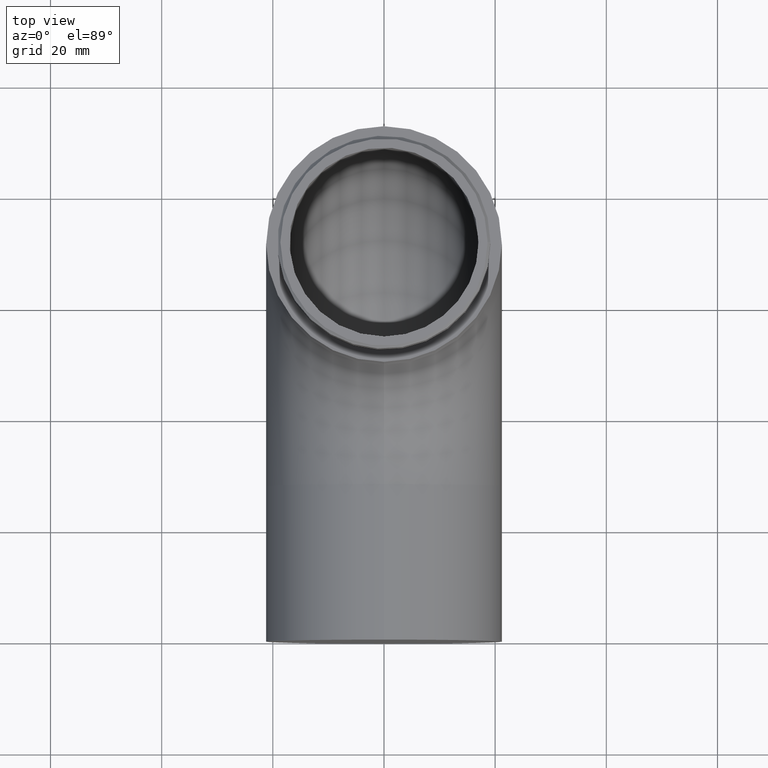
[diagram: clean part render]
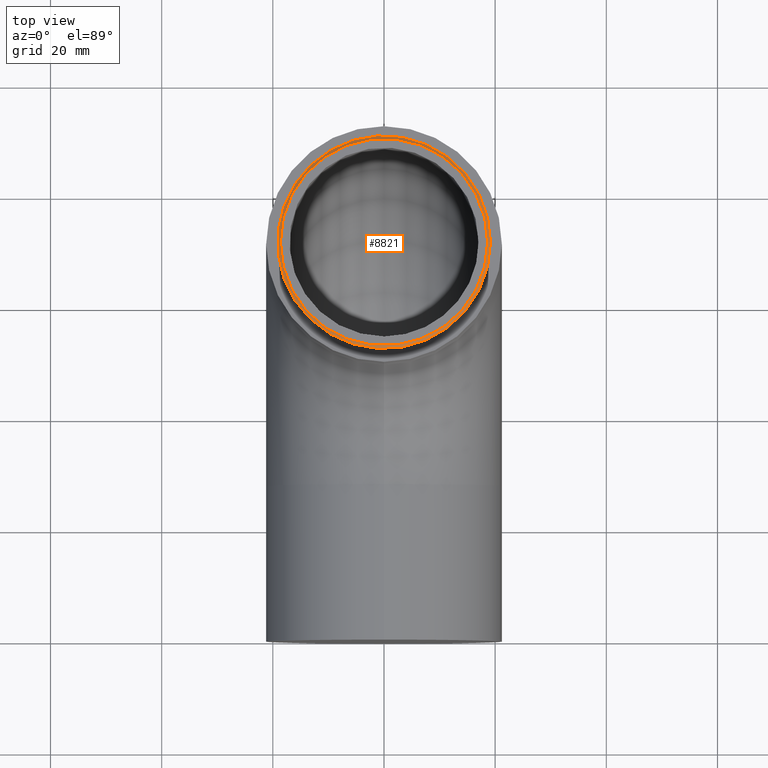
[diagram: same view with one face highlighted and labeled with its STEP entity id]
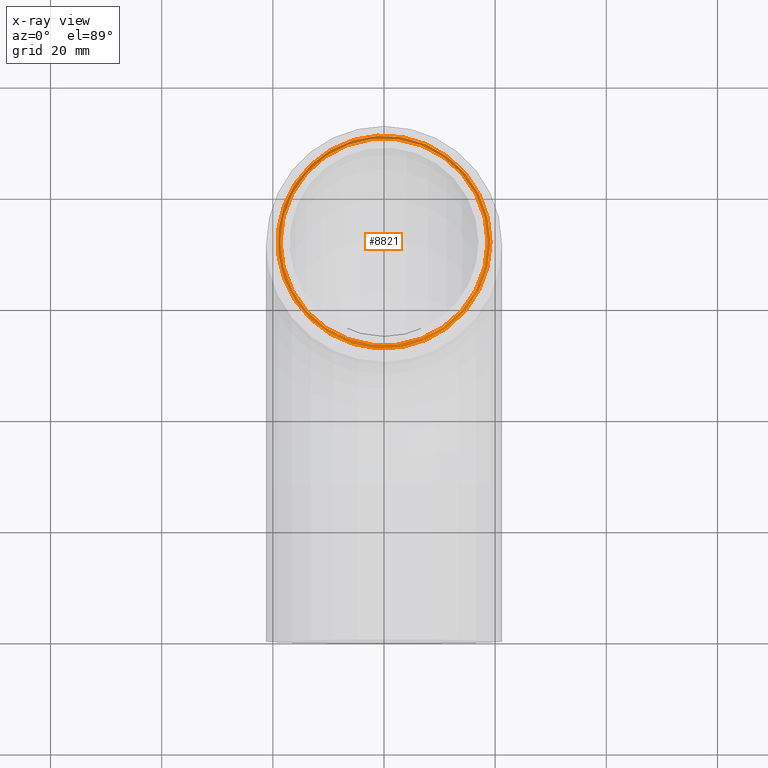
[diagram: x-ray of the same camera — body ghosted, the highlighted face saturated]
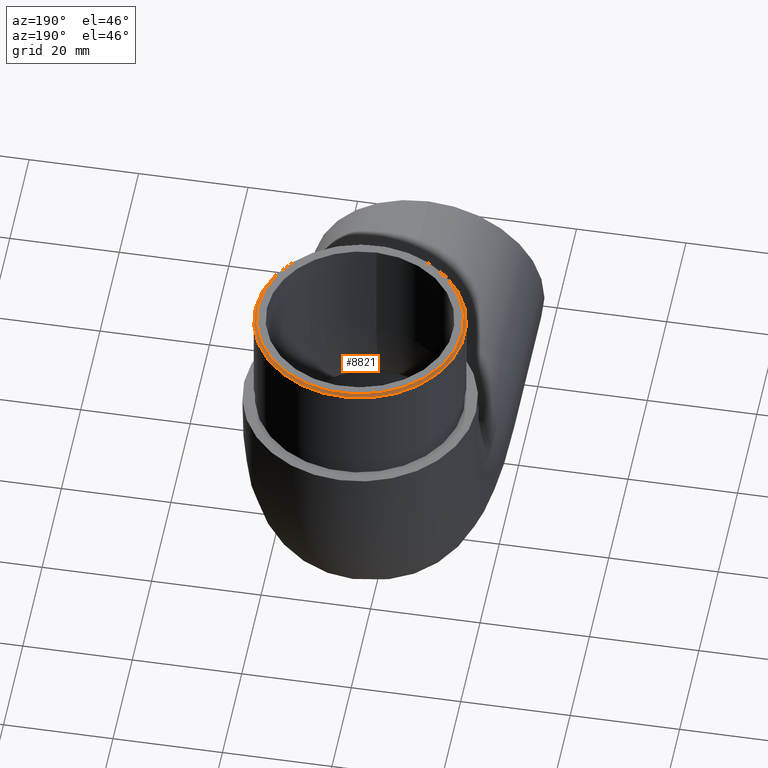
[diagram: same view with one face highlighted and labeled with its STEP entity id]
A machine part, top view. The second image highlights one B-rep face of the part: STEP entity #8821.
The next image is the same camera in x-ray: the body ghosted, the highlighted face saturated — about 0% of this face is hidden behind the body in this view.
A second angle (auxiliary view) of the same face is appended — the face is thin or edge-on in the first view.
In plain terms, the highlighted conical surface has half-angle 45 deg.
Its self-contained STEP definition (entity closure, byte-faithful):
#1307 = EDGE_LOOP ( 'NONE', ( #5397 ) ) ;
#1382 = CIRCLE ( 'NONE', #4165, 19.15000000000000200 ) ;
#1828 = FACE_BOUND ( 'NONE', #1307, .T. ) ;
#2259 = DIRECTION ( 'NONE',  ( 1.000000000000000000, 0.0000000000000000000, 0.0000000000000000000 ) ) ;
#3114 = EDGE_LOOP ( 'NONE', ( #6598 ) ) ;
#3540 = CARTESIAN_POINT ( 'NONE',  ( 18.64999999999999900, 70.80000000000001100, 62.79999999999999700 ) ) ;
#4116 = DIRECTION ( 'NONE',  ( -1.000000000000000000, 0.0000000000000000000, 0.0000000000000000000 ) ) ;
#4165 = AXIS2_PLACEMENT_3D ( 'NONE', #8050, #11250, #10227 ) ;
#4703 = CARTESIAN_POINT ( 'NONE',  ( 19.15000000000000200, 70.80000000000001100, 62.29999999999997600 ) ) ;
#4995 = VERTEX_POINT ( 'NONE', #3540 ) ;
#5397 = ORIENTED_EDGE ( 'NONE', *, *, #10005, .F. ) ;
#5458 = CONICAL_SURFACE ( 'NONE', #11893, 18.64999999999999900, 0.7853981633974309600 ) ;
#5490 = DIRECTION ( 'NONE',  ( 0.0000000000000000000, 0.0000000000000000000, 1.000000000000000000 ) ) ;
#6598 = ORIENTED_EDGE ( 'NONE', *, *, #13344, .F. ) ;
#8050 = CARTESIAN_POINT ( 'NONE',  ( 0.0000000000000000000, 70.80000000000001100, 62.29999999999997600 ) ) ;
#8082 = VERTEX_POINT ( 'NONE', #4703 ) ;
#8821 = ADVANCED_FACE ( 'NONE', ( #10269, #1828 ), #5458, .T. ) ;
#9653 = CARTESIAN_POINT ( 'NONE',  ( 0.0000000000000000000, 70.80000000000001100, 62.79999999999999700 ) ) ;
#10005 = EDGE_CURVE ( 'NONE', #4995, #4995, #13076, .T. ) ;
#10227 = DIRECTION ( 'NONE',  ( 1.000000000000000000, 0.0000000000000000000, 0.0000000000000000000 ) ) ;
#10269 = FACE_OUTER_BOUND ( 'NONE', #3114, .T. ) ;
#10495 = AXIS2_PLACEMENT_3D ( 'NONE', #13280, #5490, #2259 ) ;
#10725 = DIRECTION ( 'NONE',  ( 0.0000000000000000000, 0.0000000000000000000, -1.000000000000000000 ) ) ;
#11250 = DIRECTION ( 'NONE',  ( 0.0000000000000000000, 0.0000000000000000000, -1.000000000000000000 ) ) ;
#11893 = AXIS2_PLACEMENT_3D ( 'NONE', #9653, #10725, #4116 ) ;
#13076 = CIRCLE ( 'NONE', #10495, 18.64999999999999900 ) ;
#13280 = CARTESIAN_POINT ( 'NONE',  ( 0.0000000000000000000, 70.80000000000001100, 62.79999999999999700 ) ) ;
#13344 = EDGE_CURVE ( 'NONE', #8082, #8082, #1382, .T. ) ;